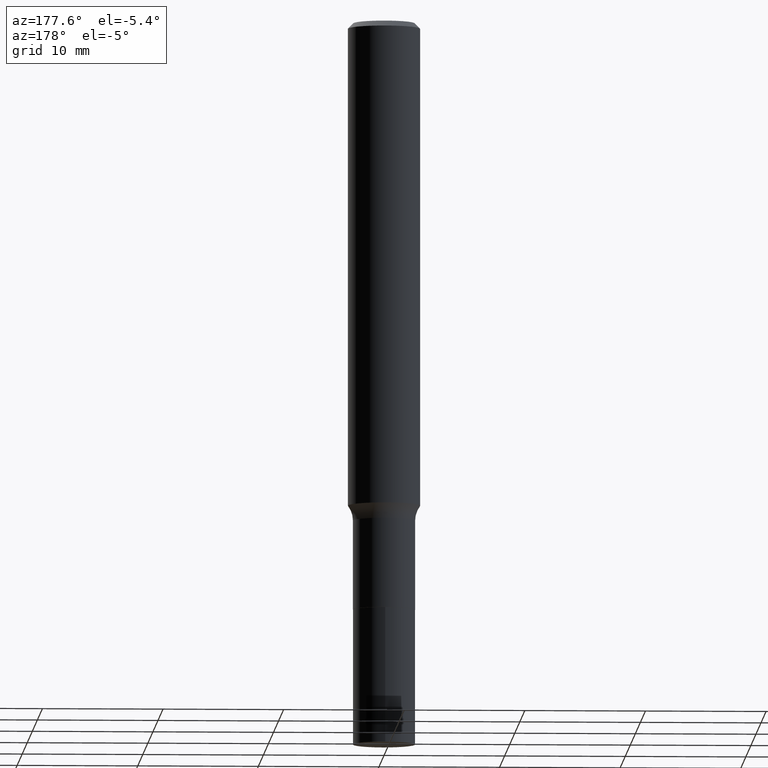
[diagram: clean part render]
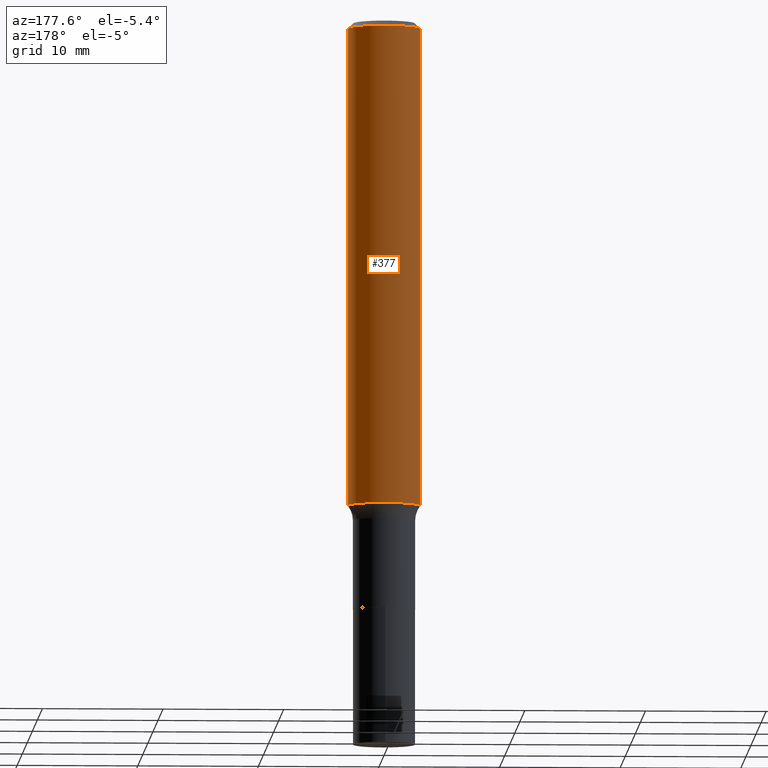
[diagram: same view with one face highlighted and labeled with its STEP entity id]
A machine part, auxiliary view. The second image highlights one B-rep face of the part: STEP entity #377.
In plain terms, the highlighted cylindrical surface (edge-blend (fillet) strip) has radius 2.9997 mm, axis along (-0, 0, 1).
Its self-contained STEP definition (entity closure, byte-faithful):
#22 = DIRECTION ( 'NONE',  ( 1.000000000000000000, -6.982962677686266711E-15, 4.876176775795935793E-29 ) ) ;
#24 = DIRECTION ( 'NONE',  ( -2.445468806185136597E-29, 3.491481338843145583E-15, 1.000000000000000000 ) ) ;
#36 = VERTEX_POINT ( 'NONE', #181 ) ;
#52 = CARTESIAN_POINT ( 'NONE',  ( 4.332147990156995868E-31, -6.185159191760670395E-17, -0.01771500000000010913 ) ) ;
#59 = ORIENTED_EDGE ( 'NONE', *, *, #309, .T. ) ;
#66 = DIRECTION ( 'NONE',  ( -2.445468806185136877E-29, 3.491481338843145188E-15, 1.000000000000000000 ) ) ;
#75 = ORIENTED_EDGE ( 'NONE', *, *, #327, .F. ) ;
#140 = AXIS2_PLACEMENT_3D ( 'NONE', #52, #305, #301 ) ;
#163 = CARTESIAN_POINT ( 'NONE',  ( 3.863780282840086408E-29, -5.516454236016518236E-15, -1.579975288610397932 ) ) ;
#181 = CARTESIAN_POINT ( 'NONE',  ( 0.1180999999999999966, -8.865394841523547570E-16, -0.01771500000000010913 ) ) ;
#199 = DIRECTION ( 'NONE',  ( 1.000000000000000000, -6.982962677686268288E-15, 0.000000000000000000 ) ) ;
#200 = ORIENTED_EDGE ( 'NONE', *, *, #292, .T. ) ;
#203 = EDGE_CURVE ( 'NONE', #36, #280, #307, .T. ) ;
#239 = VECTOR ( 'NONE', #423, 39.37007874015748143 ) ;
#242 = ORIENTED_EDGE ( 'NONE', *, *, #203, .F. ) ;
#243 = FACE_OUTER_BOUND ( 'NONE', #395, .T. ) ;
#251 = CARTESIAN_POINT ( 'NONE',  ( -0.1181000000000002187, -4.677303265083837672E-15, -1.579975288610397932 ) ) ;
#257 = VERTEX_POINT ( 'NONE', #456 ) ;
#275 = CIRCLE ( 'NONE', #408, 0.1181000000000002048 ) ;
#279 = CARTESIAN_POINT ( 'NONE',  ( 0.000000000000000000, 0.000000000000000000, 0.000000000000000000 ) ) ;
#280 = VERTEX_POINT ( 'NONE', #453 ) ;
#292 = EDGE_CURVE ( 'NONE', #257, #417, #275, .T. ) ;
#301 = DIRECTION ( 'NONE',  ( 1.000000000000000000, -6.982962677686266711E-15, 0.000000000000000000 ) ) ;
#305 = DIRECTION ( 'NONE',  ( -2.445468806185136597E-29, 3.491481338843145583E-15, 1.000000000000000000 ) ) ;
#307 = CIRCLE ( 'NONE', #140, 0.1180999999999999966 ) ;
#309 = EDGE_CURVE ( 'NONE', #417, #280, #352, .T. ) ;
#319 = CARTESIAN_POINT ( 'NONE',  ( -0.1181000000000001077, 8.391509709326790846E-16, -5.809262341591049389E-30 ) ) ;
#327 = EDGE_CURVE ( 'NONE', #257, #36, #383, .T. ) ;
#344 = DIRECTION ( 'NONE',  ( -2.445468806185136597E-29, 3.491481338843145583E-15, 1.000000000000000000 ) ) ;
#352 = LINE ( 'NONE', #319, #382 ) ;
#365 = AXIS2_PLACEMENT_3D ( 'NONE', #279, #344, #22 ) ;
#377 = ADVANCED_FACE ( 'NONE', ( #243 ), #380, .T. ) ;
#380 = CYLINDRICAL_SURFACE ( 'NONE', #365, 0.1181000000000001077 ) ;
#382 = VECTOR ( 'NONE', #66, 39.37007874015748143 ) ;
#383 = LINE ( 'NONE', #413, #239 ) ;
#395 = EDGE_LOOP ( 'NONE', ( #200, #59, #242, #75 ) ) ;
#408 = AXIS2_PLACEMENT_3D ( 'NONE', #163, #24, #199 ) ;
#413 = CARTESIAN_POINT ( 'NONE',  ( 0.1181000000000001077, -8.246878922347488542E-16, 5.758764772215005345E-30 ) ) ;
#417 = VERTEX_POINT ( 'NONE', #251 ) ;
#423 = DIRECTION ( 'NONE',  ( -2.445468806185136877E-29, 3.491481338843145188E-15, 1.000000000000000000 ) ) ;
#453 = CARTESIAN_POINT ( 'NONE',  ( -0.1180999999999999966, -1.950001943034382048E-15, -0.01771500000000010913 ) ) ;
#456 = CARTESIAN_POINT ( 'NONE',  ( 0.1181000000000002187, -6.341142128251266498E-15, -1.579975288610397932 ) ) ;